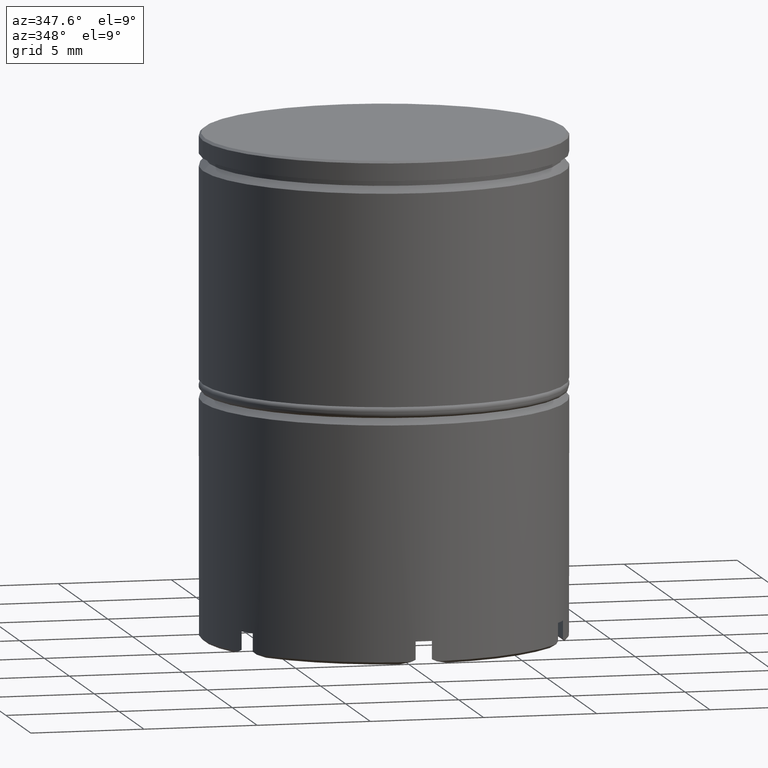
[diagram: clean part render]
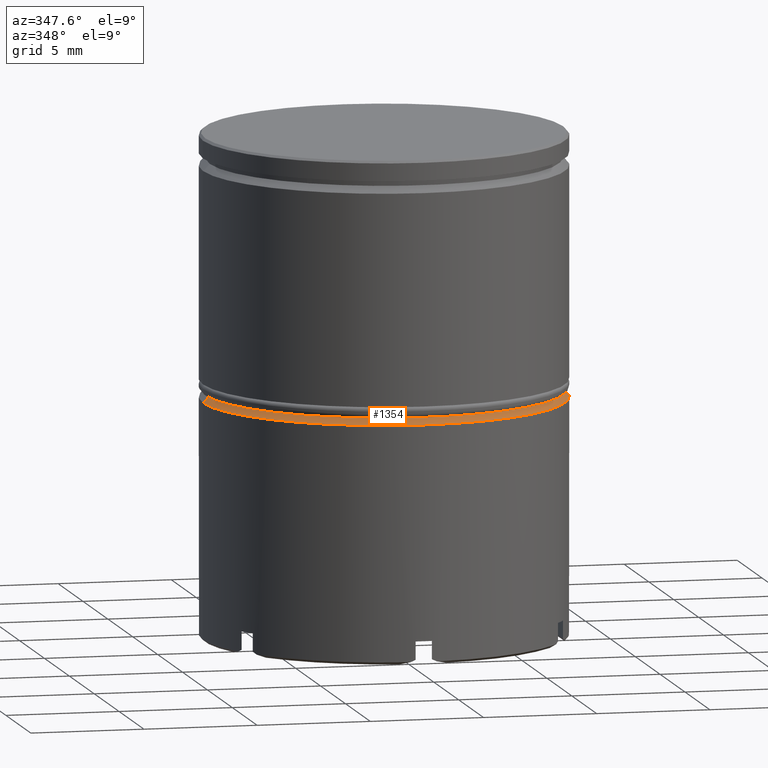
[diagram: same view with one face highlighted and labeled with its STEP entity id]
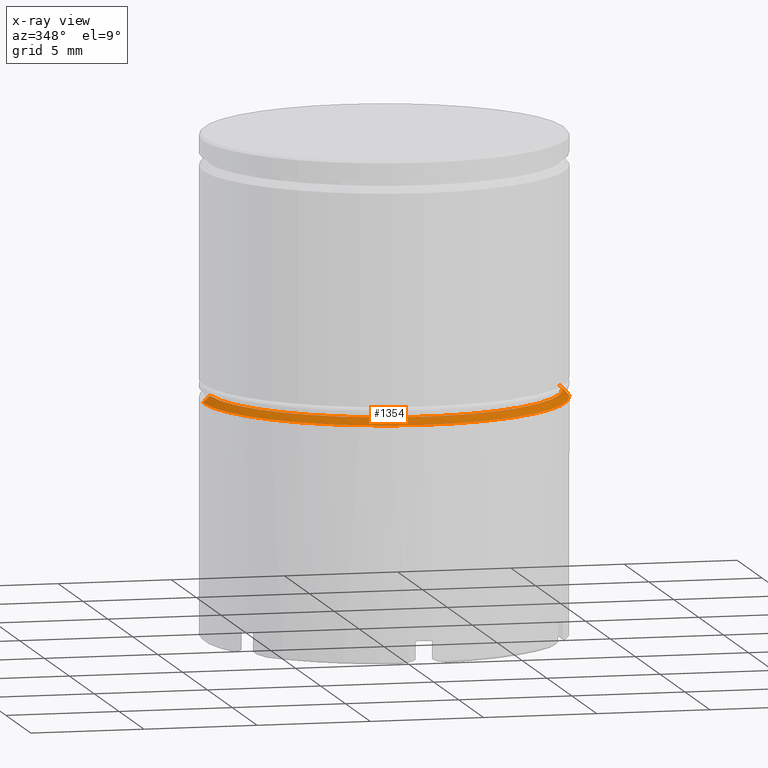
[diagram: x-ray of the same camera — body ghosted, the highlighted face saturated]
A machine part, auxiliary view. The second image highlights one B-rep face of the part: STEP entity #1354.
The next image is the same camera in x-ray: the body ghosted, the highlighted face saturated — about 0% of this face is hidden behind the body in this view.
In plain terms, the highlighted conical surface has half-angle 45 deg.
Its self-contained STEP definition (entity closure, byte-faithful):
#19 = VERTEX_POINT ( 'NONE', #519 ) ;
#21 = EDGE_CURVE ( 'NONE', #491, #956, #416, .T. ) ;
#25 = VERTEX_POINT ( 'NONE', #893 ) ;
#48 = DIRECTION ( 'NONE',  ( -0.7071067811865454633, 0.000000000000000000, -0.7071067811865495711 ) ) ;
#111 = DIRECTION ( 'NONE',  ( -0.000000000000000000, -0.000000000000000000, 1.000000000000000000 ) ) ;
#136 = CIRCLE ( 'NONE', #1636, 8.000000000000000000 ) ;
#152 = CARTESIAN_POINT ( 'NONE',  ( -7.700000000000001954, 0.000000000000000000, -11.25000000000000000 ) ) ;
#164 = AXIS2_PLACEMENT_3D ( 'NONE', #1622, #111, #481 ) ;
#191 = VECTOR ( 'NONE', #1305, 1000.000000000000000 ) ;
#250 = ORIENTED_EDGE ( 'NONE', *, *, #21, .T. ) ;
#323 = ORIENTED_EDGE ( 'NONE', *, *, #423, .F. ) ;
#333 = CARTESIAN_POINT ( 'NONE',  ( -7.700000000000000178, 9.429780353434619030E-16, -11.25000000000000000 ) ) ;
#416 = LINE ( 'NONE', #152, #708 ) ;
#423 = EDGE_CURVE ( 'NONE', #19, #25, #832, .T. ) ;
#428 = DIRECTION ( 'NONE',  ( -1.000000000000000000, 0.000000000000000000, 0.000000000000000000 ) ) ;
#481 = DIRECTION ( 'NONE',  ( 1.000000000000000000, 0.000000000000000000, 0.000000000000000000 ) ) ;
#491 = VERTEX_POINT ( 'NONE', #333 ) ;
#519 = CARTESIAN_POINT ( 'NONE',  ( 7.700000000000000178, 0.000000000000000000, -11.25000000000000000 ) ) ;
#579 = CARTESIAN_POINT ( 'NONE',  ( 0.000000000000000000, 0.000000000000000000, -11.25000000000000000 ) ) ;
#583 = CONICAL_SURFACE ( 'NONE', #847, 7.700000000000001954, 0.7853981633974453924 ) ;
#591 = CARTESIAN_POINT ( 'NONE',  ( -8.000000000000000000, 9.797174393178825657E-16, -11.54999999999999893 ) ) ;
#654 = ORIENTED_EDGE ( 'NONE', *, *, #857, .F. ) ;
#675 = DIRECTION ( 'NONE',  ( 0.000000000000000000, 0.000000000000000000, -1.000000000000000000 ) ) ;
#708 = VECTOR ( 'NONE', #48, 1000.000000000000000 ) ;
#822 = FACE_OUTER_BOUND ( 'NONE', #829, .T. ) ;
#829 = EDGE_LOOP ( 'NONE', ( #323, #1184, #250, #654 ) ) ;
#832 = LINE ( 'NONE', #1559, #191 ) ;
#847 = AXIS2_PLACEMENT_3D ( 'NONE', #579, #1456, #428 ) ;
#857 = EDGE_CURVE ( 'NONE', #25, #956, #136, .T. ) ;
#875 = CIRCLE ( 'NONE', #164, 7.700000000000000178 ) ;
#893 = CARTESIAN_POINT ( 'NONE',  ( 8.000000000000000000, 0.000000000000000000, -11.54999999999999893 ) ) ;
#956 = VERTEX_POINT ( 'NONE', #591 ) ;
#1087 = DIRECTION ( 'NONE',  ( 1.000000000000000000, 0.000000000000000000, 0.000000000000000000 ) ) ;
#1184 = ORIENTED_EDGE ( 'NONE', *, *, #1522, .F. ) ;
#1305 = DIRECTION ( 'NONE',  ( 0.7071067811865454633, 8.659560562354908206E-17, -0.7071067811865495711 ) ) ;
#1354 = ADVANCED_FACE ( 'NONE', ( #822 ), #583, .T. ) ;
#1456 = DIRECTION ( 'NONE',  ( 0.000000000000000000, 0.000000000000000000, -1.000000000000000000 ) ) ;
#1522 = EDGE_CURVE ( 'NONE', #491, #19, #875, .T. ) ;
#1548 = CARTESIAN_POINT ( 'NONE',  ( 0.000000000000000000, 0.000000000000000000, -11.54999999999999893 ) ) ;
#1559 = CARTESIAN_POINT ( 'NONE',  ( 7.700000000000001954, 9.429780353434622974E-16, -11.25000000000000000 ) ) ;
#1622 = CARTESIAN_POINT ( 'NONE',  ( 0.000000000000000000, 0.000000000000000000, -11.25000000000000000 ) ) ;
#1636 = AXIS2_PLACEMENT_3D ( 'NONE', #1548, #675, #1087 ) ;